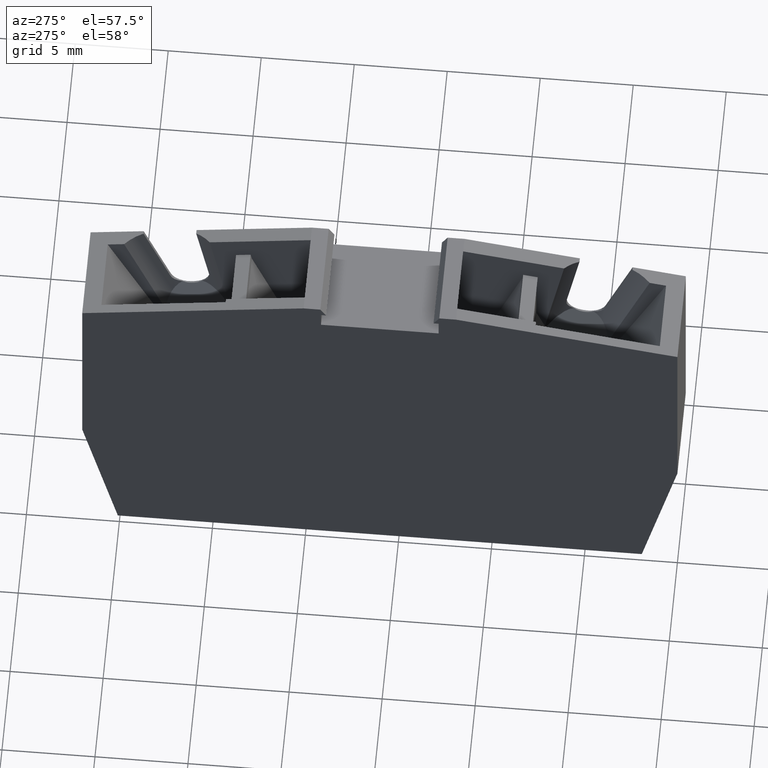
[diagram: clean part render]
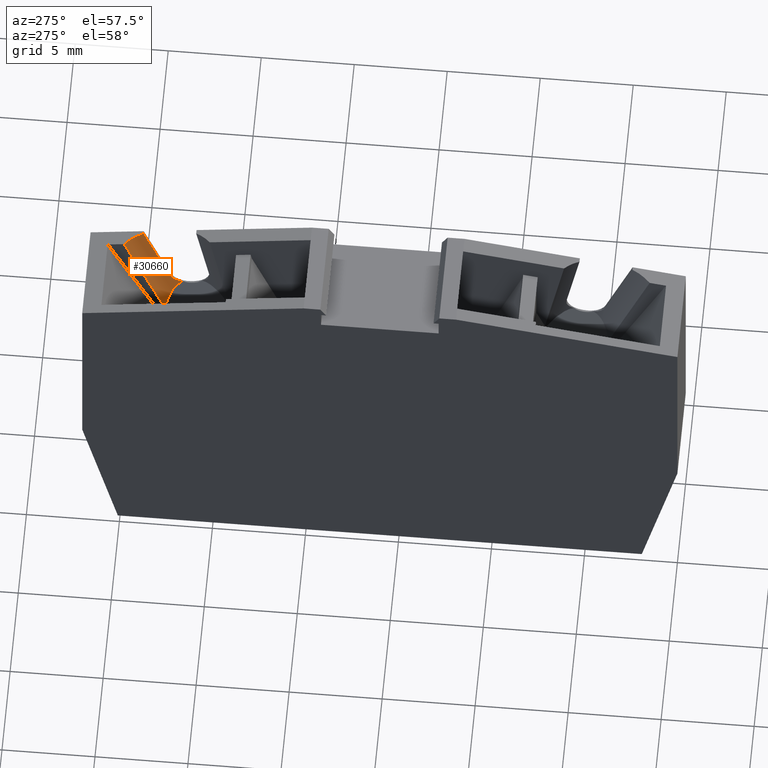
[diagram: same view with one face highlighted and labeled with its STEP entity id]
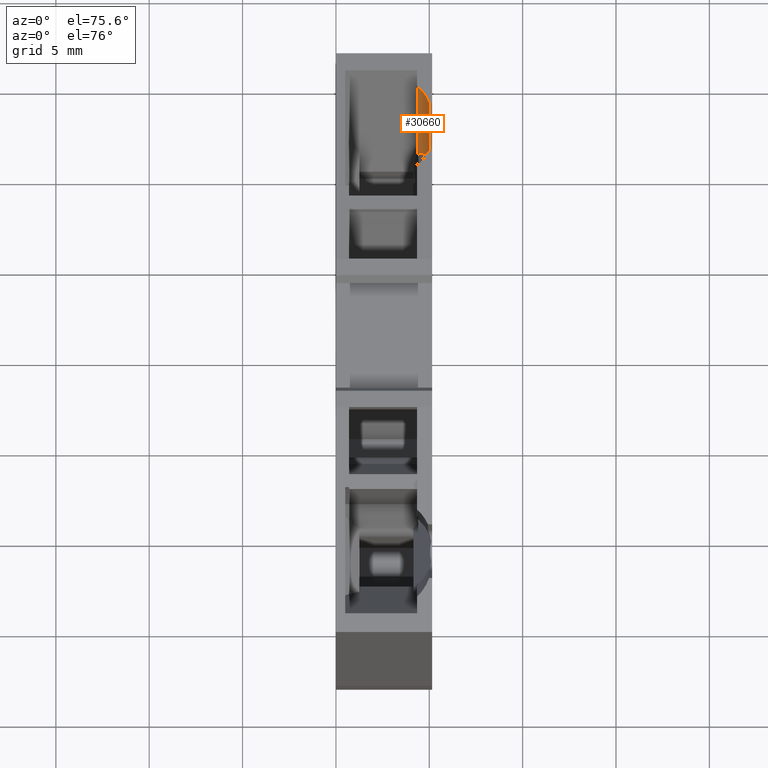
[diagram: same view with one face highlighted and labeled with its STEP entity id]
A machine part, auxiliary view. The second image highlights one B-rep face of the part: STEP entity #30660.
A second angle (auxiliary view) of the same face is appended — the face is thin or edge-on in the first view.
In plain terms, the highlighted cylindrical surface (partial cylindrical patch) has radius 2.6154 mm, axis along (-0, -0.342, -0.9397).
Its self-contained STEP definition (entity closure, byte-faithful):
#5430=CARTESIAN_POINT('',(-4.13156586621149,98.4064081332777,
55.2084248015004));
#5440=VERTEX_POINT('',#5430);
#5470=CARTESIAN_POINT('',(-4.51646609882554,99.2318293458244,
57.6652228200319));
#5480=DIRECTION('',(0.906307787036652,0.422618261740696,
-4.01808419017144E-15));
#5490=DIRECTION('',(-0.422618261740696,0.906307787036652,
1.95974123980809E-14));
#5500=AXIS2_PLACEMENT_3D('',#5470,#5480,#5490);
#5510=ELLIPSE('',#5500,2.65574601904709,2.61539926958888);
#5520=CARTESIAN_POINT('',(-3.70844623507248,97.4990251560967,
55.8499999999999));
#5530=VERTEX_POINT('',#5520);
#5540=EDGE_CURVE('',#5530,#5440,#5510,.T.);
#29250=CARTESIAN_POINT('',(-4.48467187323318,98.159160645374,
55.2084248015003));
#29260=DIRECTION('',(0.819152044289001,0.573576436351033,
-1.57772181044202E-29));
#29270=VECTOR('',#29260,1.);
#29280=LINE('',#29250,#29270);
#29290=CARTESIAN_POINT('',(-0.659972119695101,100.83724424419,
55.2084248015003));
#29300=VERTEX_POINT('',#29290);
#29310=EDGE_CURVE('',#5440,#29300,#29280,.T.);
#29560=CARTESIAN_POINT('',(-3.91913923216486,97.3514963312847,
55.8499999999999));
#29570=DIRECTION('',(0.819152044289001,0.573576436351033,
-1.41994962939782E-29));
#29580=VECTOR('',#29570,1.);
#29590=LINE('',#29560,#29580);
#29600=CARTESIAN_POINT('',(1.61500198861727,101.226543731593,
55.8499999999999));
#29610=VERTEX_POINT('',#29600);
#29620=EDGE_CURVE('',#5530,#29610,#29590,.T.);
#29890=CARTESIAN_POINT('',(-4.99912128441292,98.8938705465201,
57.665222820032));
#29900=DIRECTION('',(0.819152044289002,0.573576436351033,
-1.49883571991992E-29));
#29910=DIRECTION('',(0.135873849760269,-0.194047967703513,
-0.971536763679821));
#29920=AXIS2_PLACEMENT_3D('',#29890,#29900,#29910);
#29930=CYLINDRICAL_SURFACE('',#29920,2.61539926958888);
#29940=ORIENTED_EDGE('',*,*,#29310,.F.);
#29950=CARTESIAN_POINT('',(-1.23354855604613,101.656396288479,
54.5499999999999));
#29960=DIRECTION('',(2.83989925879564E-29,-6.9419759659449E-29,-1.));
#29970=DIRECTION('',(-0.866025403784447,-0.499999999999986,
7.09974814698911E-30));
#29980=AXIS2_PLACEMENT_3D('',#29950,#29960,#29970);
#29990=CYLINDRICAL_SURFACE('',#29980,1.);
#30000=CARTESIAN_POINT('',(-0.233964050717973,101.627572396948,
55.0968748590198));
#30010=CARTESIAN_POINT('',(-0.234522628795801,101.608201452847,
55.0998644418383));
#30020=CARTESIAN_POINT('',(-0.235644725038101,101.588846324967,
55.1029359415609));
#30030=CARTESIAN_POINT('',(-0.237326554308592,101.569553192803,
55.1060640284476));
#30040=CARTESIAN_POINT('',(-0.23900838458436,101.550260049106,
55.109192117204));
#30050=CARTESIAN_POINT('',(-0.241249904247621,101.531029322067,
55.1123766882725));
#30060=CARTESIAN_POINT('',(-0.244042305701076,101.511906217773,
55.1155914312031));
#30070=CARTESIAN_POINT('',(-0.246834714185903,101.492783065325,
55.1188061822286));
#30080=CARTESIAN_POINT('',(-0.250177925786722,101.473767932685,
55.1220509996852));
#30090=CARTESIAN_POINT('',(-0.254058488307936,101.454903838986,
55.1252993639969));
#30100=CARTESIAN_POINT('',(-0.257939068368889,101.436039660024,
55.1285477429908));
#30110=CARTESIAN_POINT('',(-0.262356888430617,101.417326887761,
55.1317995676892));
#30120=CARTESIAN_POINT('',(-0.267294538237591,101.398805191838,
55.1350288890367));
#30130=CARTESIAN_POINT('',(-0.272228258639448,101.380298235568,
55.138255640475));
#30140=CARTESIAN_POINT('',(-0.27770624900955,101.361886064854,
55.1414767260949));
#30150=CARTESIAN_POINT('',(-0.283729474831117,101.343596491548,
55.1446685884933));
#30160=CARTESIAN_POINT('',(-0.28975224535995,101.325308300743,
55.1478602096203));
#30170=CARTESIAN_POINT('',(-0.296318559060377,101.307148752729,
55.1510215145505));
#30180=CARTESIAN_POINT('',(-0.303419641576667,101.289163116682,
55.1541257089954));
#30190=CARTESIAN_POINT('',(-0.310520702530408,101.271177535249,
55.1572298940143));
#30200=CARTESIAN_POINT('',(-0.318156398694646,101.25336627309,
55.1602768545304));
#30210=CARTESIAN_POINT('',(-0.326312505405605,101.235774429301,
55.1632402605094));
#30220=CARTESIAN_POINT('',(-0.334468604139053,101.218182602718,
55.1662036635898));
#30230=CARTESIAN_POINT('',(-0.343144931499705,101.20081061265,
55.1690833975149));
#30240=CARTESIAN_POINT('',(-0.352322051646681,101.183702044867,
55.1718544918904));
#30250=CARTESIAN_POINT('',(-0.361499182373265,101.166593457361,
55.1746255894606));
#30260=CARTESIAN_POINT('',(-0.371176874408662,101.149748713063,
55.1772879385871));
#30270=CARTESIAN_POINT('',(-0.381331069531327,101.133208601623,
55.1798187822583));
#30280=CARTESIAN_POINT('',(-0.391485300234938,101.116668432224,
55.1823496347977));
#30290=CARTESIAN_POINT('',(-0.402115753635536,101.100433306695,
55.1847488859959));
#30300=CARTESIAN_POINT('',(-0.413194752559578,101.084539980387,
55.1869967401051));
#30310=CARTESIAN_POINT('',(-0.424276103103849,101.068643280572,
55.1892450713421));
#30320=CARTESIAN_POINT('',(-0.435795165996977,101.053102568142,
55.1913401213135));
#30330=CARTESIAN_POINT('',(-0.447752665059557,101.037910381034,
55.1932706038425));
#30340=CARTESIAN_POINT('',(-0.459721244724009,101.02270411585,
55.195202875283));
#30350=CARTESIAN_POINT('',(-0.472176427548861,101.007788645917,
55.1969774891394));
#30360=CARTESIAN_POINT('',(-0.485093957577147,100.993210255732,
55.1985752167271));
#30370=CARTESIAN_POINT('',(-0.498011399043834,100.978631965496,
55.2001729333608));
#30380=CARTESIAN_POINT('',(-0.511390781759826,100.964391313202,
55.201593648308));
#30390=CARTESIAN_POINT('',(-0.525200042449442,100.950533424117,
55.2028217928995));
#30400=CARTESIAN_POINT('',(-0.539009255908328,100.936675582429,
55.2040499332904));
#30410=CARTESIAN_POINT('',(-0.553247837014612,100.923201067272,
55.2050854130951));
#30420=CARTESIAN_POINT('',(-0.567876913137568,100.910151513739,
55.2059172980171));
#30430=CARTESIAN_POINT('',(-0.582505988403391,100.89710196097,
55.2067491828903));
#30440=CARTESIAN_POINT('',(-0.597524963353588,100.884477907168,
55.2073774181007));
#30450=CARTESIAN_POINT('',(-0.612889702286934,100.872315560971,
55.2077963252245));
#30460=CARTESIAN_POINT('',(-0.628254493831657,100.860153173127,
55.2082152337826));
#30470=CARTESIAN_POINT('',(-0.643964397203471,100.848452972148,
55.2084248015003));
#30480=CARTESIAN_POINT('',(-0.659972119695101,100.83724424419,
55.2084248015003));
#30490=B_SPLINE_CURVE_WITH_KNOTS('',3,(#30000,#30010,#30020,#30030,
#30040,#30050,#30060,#30070,#30080,#30090,#30100,#30110,#30120,#30130,
#30140,#30150,#30160,#30170,#30180,#30190,#30200,#30210,#30220,#30230,
#30240,#30250,#30260,#30270,#30280,#30290,#30300,#30310,#30320,#30330,
#30340,#30350,#30360,#30370,#30380,#30390,#30400,#30410,#30420,#30430,
#30440,#30450,#30460,#30470,#30480),.UNSPECIFIED.,.F.,.F.,(4,3,3,3,3,3,3
,3,3,3,3,3,3,3,3,3,4),(0.,0.0588467576894905,0.117668511556144,
0.176360725564586,0.234822979572587,0.293234891538143,0.351895573414593,
0.410704381348296,0.469553509608812,0.528337366517128,0.586958729349376,
0.645344933796766,0.703839898187359,0.762567485752163,0.821412267435678,
0.88025413750352,0.938976092358931),.UNSPECIFIED.);
#30500=SURFACE_CURVE('',#30490,(#29990,#29930),.CURVE_3D.);
#30510=CARTESIAN_POINT('',(-0.233964050725537,101.627572396948,
55.0968748590187));
#30520=VERTEX_POINT('',#30510);
#30530=EDGE_CURVE('',#30520,#29300,#30500,.T.);
#30540=ORIENTED_EDGE('',*,*,#30530,.T.);
#30550=CARTESIAN_POINT('',(3.82674609264629,105.073809415176,
57.665222820032));
#30560=DIRECTION('',(-0.405313164070276,-0.189000632356995,
0.894427190999915));
#30570=DIRECTION('',(0.713577479916655,0.546158584966,0.438768709257773)
);
#30580=AXIS2_PLACEMENT_3D('',#30550,#30560,#30570);
#30590=ELLIPSE('',#30580,5.93842862956372,2.61539926958888);
#30600=EDGE_CURVE('',#30520,#29610,#30590,.T.);
#30610=ORIENTED_EDGE('',*,*,#30600,.F.);
#30620=ORIENTED_EDGE('',*,*,#29620,.T.);
#30630=ORIENTED_EDGE('',*,*,#5540,.F.);
#30640=EDGE_LOOP('',(#30630,#30620,#30610,#30540,#29940));
#30650=FACE_OUTER_BOUND('',#30640,.T.);
#30660=ADVANCED_FACE('',(#30650),#29930,.F.);